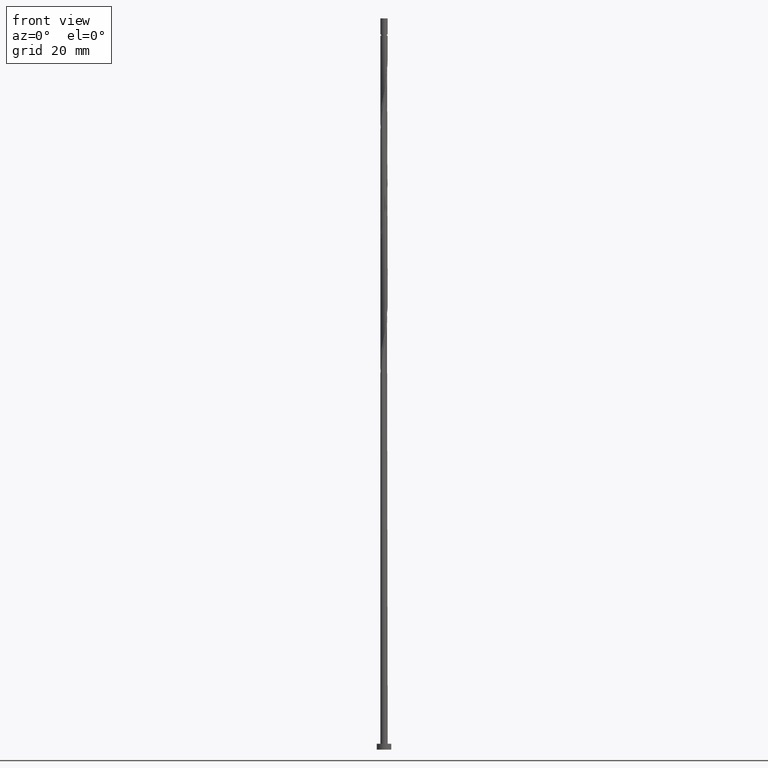
[diagram: clean part render]
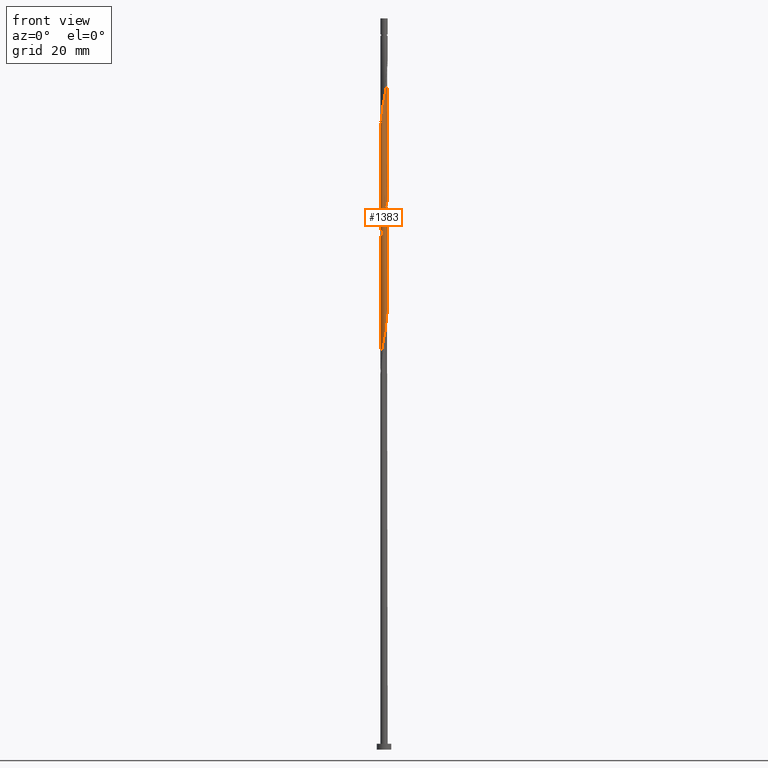
[diagram: same view with one face highlighted and labeled with its STEP entity id]
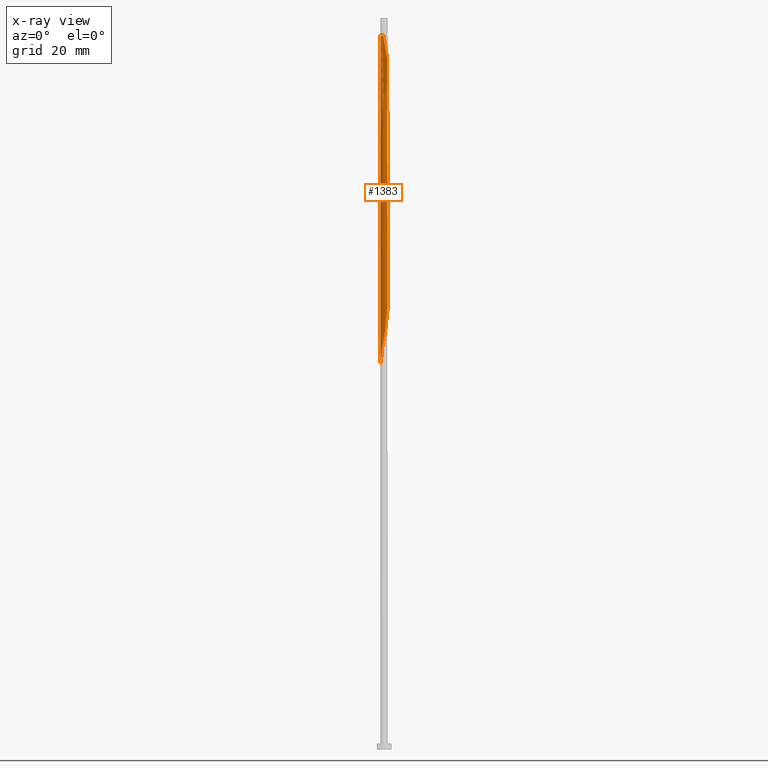
[diagram: x-ray of the same camera — body ghosted, the highlighted face saturated]
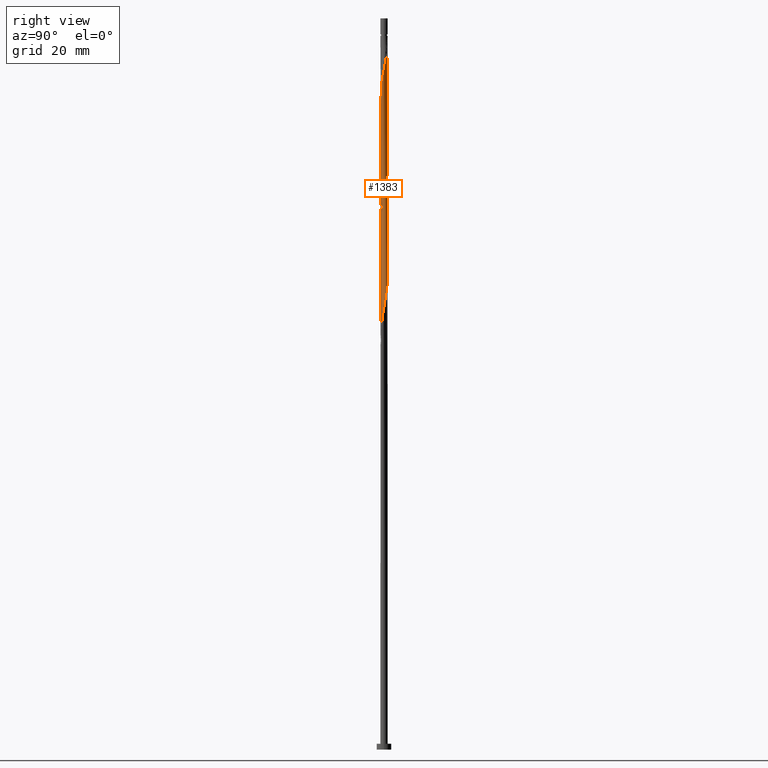
[diagram: same view with one face highlighted and labeled with its STEP entity id]
A machine part, front view. The second image highlights one B-rep face of the part: STEP entity #1383.
The next image is the same camera in x-ray: the body ghosted, the highlighted face saturated — about 0% of this face is hidden behind the body in this view.
A second angle (right view) of the same face is appended — the face is thin or edge-on in the first view.
In plain terms, the highlighted cylindrical surface (bore or boss wall) has radius 1.25 mm, axis along (-0, -0, -1).
Its self-contained STEP definition (entity closure, byte-faithful):
#2 = EDGE_CURVE ( 'NONE', #87, #1367, #236, .T. ) ;
#30 = CARTESIAN_POINT ( 'NONE',  ( -1.186085250128970925, -0.3945906479207278994, 213.6185468352079511 ) ) ;
#41 = CARTESIAN_POINT ( 'NONE',  ( -1.250000000000000222, -2.879018167657564440E-16, 214.1451866598178242 ) ) ;
#48 = ORIENTED_EDGE ( 'NONE', *, *, #283, .F. ) ;
#60 = CARTESIAN_POINT ( 'NONE',  ( -0.3974887887239266782, -1.194796663026319372, 180.7659827326439483 ) ) ;
#69 = CARTESIAN_POINT ( 'NONE',  ( 1.149459557334894466, -0.4911646628692577510, 229.6441878608490299 ) ) ;
#71 = CARTESIAN_POINT ( 'NONE',  ( -0.3490314803447894243, 1.200282060904154902, 163.9390596557208255 ) ) ;
#82 = CARTESIAN_POINT ( 'NONE',  ( -0.4947721086058738393, 1.157901966353689138, 164.7403417070028695 ) ) ;
#87 = VERTEX_POINT ( 'NONE', #1471 ) ;
#90 = CARTESIAN_POINT ( 'NONE',  ( 1.233601749225618605, -0.2018086328864492629, 231.2467519634130895 ) ) ;
#92 = CARTESIAN_POINT ( 'NONE',  ( -0.2487468592766571562, -1.224999999999999645, 139.9005981172593067 ) ) ;
#100 = CARTESIAN_POINT ( 'NONE',  ( -0.2032908520837046762, 1.242662155454620887, 204.8044442711054671 ) ) ;
#102 = CARTESIAN_POINT ( 'NONE',  ( 0.9985149540873564655, 0.7519759879570124816, 155.9262391429003287 ) ) ;
#107 = EDGE_CURVE ( 'NONE', #1596, #740, #1357, .T. ) ;
#111 = CARTESIAN_POINT ( 'NONE',  ( 1.089821369880615620, 0.6307343219546407420, 196.7916237582850272 ) ) ;
#119 = CARTESIAN_POINT ( 'NONE',  ( -1.250000000000000000, 0.000000000000000000, 250.0000000000000000 ) ) ;
#120 = CARTESIAN_POINT ( 'NONE',  ( 0.000000000000000000, 0.000000000000000000, 250.0000000000000000 ) ) ;
#159 = CARTESIAN_POINT ( 'NONE',  ( 1.250000000000000222, -0.04971641292096312670, 193.0476824108515359 ) ) ;
#168 = CARTESIAN_POINT ( 'NONE',  ( -1.233997229160462394, -0.2505738245793976415, 212.8172647839259639 ) ) ;
#181 = CARTESIAN_POINT ( 'NONE',  ( -0.8668509141045653843, -0.9005939666220746931, 216.8236750403361555 ) ) ;
#197 = CARTESIAN_POINT ( 'NONE',  ( 0.6718720440307898167, -1.064952749933035570, 225.6377776044388099 ) ) ;
#199 = CARTESIAN_POINT ( 'NONE',  ( 1.149459557334893578, 0.4911646628692569738, 154.3236750403362691 ) ) ;
#207 = CARTESIAN_POINT ( 'NONE',  ( 0.4947721086058736728, -1.157901966353688916, 143.9070083736695551 ) ) ;
#219 = CARTESIAN_POINT ( 'NONE',  ( -1.233997229160461284, 0.2505738245793975860, 171.1505981172593351 ) ) ;
#222 = CARTESIAN_POINT ( 'NONE',  ( 1.246051491411263479, 0.09927578129518584149, 232.8493160659772343 ) ) ;
#224 = CARTESIAN_POINT ( 'NONE',  ( 0.6261355586025915132, -1.081875345062184746, 144.7082904249516560 ) ) ;
#231 = CARTESIAN_POINT ( 'NONE',  ( -0.9762028196098183619, 0.7953392094734684781, 167.9454699121311023 ) ) ;
#236 = LINE ( 'NONE', #759, #449 ) ;
#241 = LINE ( 'NONE', #1164, #477 ) ;
#242 = CARTESIAN_POINT ( 'NONE',  ( -1.250000000000001332, 7.178850495977267118E-16, 211.4893429080340184 ) ) ;
#243 = CARTESIAN_POINT ( 'NONE',  ( -1.233601749225617272, -0.2018086328864484302, 131.8877776044387815 ) ) ;
#262 = CARTESIAN_POINT ( 'NONE',  ( 1.250000000000000888, 0.1015705481713045505, 193.8515540638327934 ) ) ;
#277 = VERTEX_POINT ( 'NONE', #977 ) ;
#283 = EDGE_CURVE ( 'NONE', #999, #1367, #1059, .T. ) ;
#287 = CARTESIAN_POINT ( 'NONE',  ( -1.250000000000001332, 7.178850495977267118E-16, 211.4893429080340184 ) ) ;
#294 = CARTESIAN_POINT ( 'NONE',  ( 1.233997229160461284, -0.2505738245793976970, 191.9839314505926211 ) ) ;
#316 = CARTESIAN_POINT ( 'NONE',  ( -1.250000000000000222, -2.879018167657564440E-16, 214.1451866598178242 ) ) ;
#318 = CARTESIAN_POINT ( 'NONE',  ( -0.6718720440307901498, -1.064952749933033793, 179.1634186300797751 ) ) ;
#325 = CARTESIAN_POINT ( 'NONE',  ( 1.233997229160462394, 0.2505738245793974750, 233.6505981172593351 ) ) ;
#327 = CARTESIAN_POINT ( 'NONE',  ( 0.9762028196098180288, -0.7953392094734692552, 147.1121365787977311 ) ) ;
#330 = EDGE_CURVE ( 'NONE', #1596, #277, #241, .T. ) ;
#333 = ORIENTED_EDGE ( 'NONE', *, *, #330, .T. ) ;
#334 = CARTESIAN_POINT ( 'NONE',  ( 0.9762028196098204713, 0.7953392094734685891, 236.8557263223875111 ) ) ;
#336 = CARTESIAN_POINT ( 'NONE',  ( 1.209097744789171758, 0.3515950037838719289, 153.5223929890541115 ) ) ;
#346 = CARTESIAN_POINT ( 'NONE',  ( -0.05164296112715841686, 1.248932746214149958, 162.3364955531567375 ) ) ;
#355 = CARTESIAN_POINT ( 'NONE',  ( -1.233601749225617272, -0.2018086328864484302, 173.5544442711054671 ) ) ;
#360 = ORIENTED_EDGE ( 'NONE', *, *, #2, .T. ) ;
#372 = CARTESIAN_POINT ( 'NONE',  ( 0.2487468592766572673, 1.224999999999999645, 202.4005981172593351 ) ) ;
#409 = EDGE_CURVE ( 'NONE', #1632, #999, #1705, .T. ) ;
#421 = VECTOR ( 'NONE', #1018, 1000.000000000000000 ) ;
#427 = CARTESIAN_POINT ( 'NONE',  ( 1.250000000000000444, 3.664204940655083269E-16, 193.3118533264844814 ) ) ;
#432 = ORIENTED_EDGE ( 'NONE', *, *, #107, .F. ) ;
#433 = CARTESIAN_POINT ( 'NONE',  ( -1.057188045353649741, -0.6669733403677636785, 215.2211109377720391 ) ) ;
#442 = DIRECTION ( 'NONE',  ( -0.000000000000000000, -0.000000000000000000, -1.000000000000000000 ) ) ;
#447 = CARTESIAN_POINT ( 'NONE',  ( 1.246051491411262369, -0.09927578129518740968, 192.7852135018746651 ) ) ;
#449 = VECTOR ( 'NONE', #670, 1000.000000000000000 ) ;
#452 = CARTESIAN_POINT ( 'NONE',  ( -0.2032908520837054811, -1.242662155454621997, 220.8300852967464891 ) ) ;
#454 = CARTESIAN_POINT ( 'NONE',  ( 0.2032908520837042876, -1.242662155454620665, 183.9711109377721527 ) ) ;
#462 = CARTESIAN_POINT ( 'NONE',  ( 0.2032908520837055921, 1.242662155454621997, 241.6634186300798319 ) ) ;
#464 = CARTESIAN_POINT ( 'NONE',  ( -0.5346804163773581919, -1.129874706479676361, 179.9647006813618475 ) ) ;
#471 = CARTESIAN_POINT ( 'NONE',  ( 1.089821369880616508, -0.6307343219546429625, 228.8429058095669859 ) ) ;
#473 = CARTESIAN_POINT ( 'NONE',  ( -0.2032908520837046762, 1.242662155454620887, 163.1377776044387531 ) ) ;
#477 = VECTOR ( 'NONE', #1580, 1000.000000000000000 ) ;
#482 = CARTESIAN_POINT ( 'NONE',  ( 0.6718720440307903718, 1.064952749933033793, 158.3300852967464323 ) ) ;
#490 = CARTESIAN_POINT ( 'NONE',  ( -0.1000049298293870792, 1.255203336973681472, 243.2659827326440052 ) ) ;
#492 = CARTESIAN_POINT ( 'NONE',  ( 0.05164296112715802134, -1.248932746214150402, 141.5031622198233947 ) ) ;
#497 = CARTESIAN_POINT ( 'NONE',  ( 1.250000000000000444, 3.664204940655083269E-16, 193.3118533264844814 ) ) ;
#498 = CYLINDRICAL_SURFACE ( 'NONE', #564, 1.250000000000000000 ) ;
#502 = ORIENTED_EDGE ( 'NONE', *, *, #409, .F. ) ;
#523 = CARTESIAN_POINT ( 'NONE',  ( -1.138173271097478123, 0.5386074712620583238, 211.2147006813618475 ) ) ;
#525 = CARTESIAN_POINT ( 'NONE',  ( -1.250000000000000444, -0.1015705481713048419, 131.3515540638328218 ) ) ;
#554 = CARTESIAN_POINT ( 'NONE',  ( 1.057188045353647965, -0.6669733403677639005, 189.5800852967464607 ) ) ;
#564 = AXIS2_PLACEMENT_3D ( 'NONE', #120, #1156, #742 ) ;
#577 = CARTESIAN_POINT ( 'NONE',  ( 0.000000000000000000, 0.000000000000000000, 244.0672647839259639 ) ) ;
#586 = CARTESIAN_POINT ( 'NONE',  ( 0.6261355586025928455, 1.081875345062185190, 239.2595724762335578 ) ) ;
#588 = CARTESIAN_POINT ( 'NONE',  ( -0.6261355586025916242, 1.081875345062184746, 165.5416237582849135 ) ) ;
#598 = CARTESIAN_POINT ( 'NONE',  ( 0.4947721086058736728, -1.157901966353688916, 185.5736750403362407 ) ) ;
#604 = CARTESIAN_POINT ( 'NONE',  ( -0.3490314803447900349, -1.200282060904155790, 220.0288032454643314 ) ) ;
#606 = CARTESIAN_POINT ( 'NONE',  ( -0.1000049298293881339, -1.255203336973680139, 182.3685468352080079 ) ) ;
#611 = CARTESIAN_POINT ( 'NONE',  ( 1.057188045353649519, 0.6669733403677640116, 236.0544442711053534 ) ) ;
#613 = CARTESIAN_POINT ( 'NONE',  ( -0.5346804163773581919, -1.129874706479676361, 138.2980340146951619 ) ) ;
#624 = CARTESIAN_POINT ( 'NONE',  ( 0.6718720440307903718, 1.064952749933033793, 199.9967519634131179 ) ) ;
#626 = CARTESIAN_POINT ( 'NONE',  ( 1.250000000000000444, 3.664204940655083269E-16, 193.3118533264844814 ) ) ;
#627 = CARTESIAN_POINT ( 'NONE',  ( 1.233997229160461284, -0.2505738245793976970, 150.3172647839259923 ) ) ;
#634 = CARTESIAN_POINT ( 'NONE',  ( 1.209097744789171758, 0.3515950037838719289, 195.1890596557208539 ) ) ;
#644 = CARTESIAN_POINT ( 'NONE',  ( -1.089821369880615398, -0.6307343219546411861, 134.2916237582849703 ) ) ;
#670 = DIRECTION ( 'NONE',  ( -0.000000000000000000, -0.000000000000000000, -1.000000000000000000 ) ) ;
#679 = CARTESIAN_POINT ( 'NONE',  ( 1.138173271097478123, -0.5386074712620583238, 190.3813673480285900 ) ) ;
#690 = CARTESIAN_POINT ( 'NONE',  ( -1.246051491411263479, -0.09927578129518627170, 212.0159827326438631 ) ) ;
#697 = CARTESIAN_POINT ( 'NONE',  ( -0.7574990085993109634, -1.005848723770680797, 217.6249570916182563 ) ) ;
#705 = CARTESIAN_POINT ( 'NONE',  ( -0.4947721086058747275, -1.157901966353690248, 219.2275211941823443 ) ) ;
#714 = CARTESIAN_POINT ( 'NONE',  ( 1.057188045353647965, -0.6669733403677639005, 147.9134186300797751 ) ) ;
#724 = CARTESIAN_POINT ( 'NONE',  ( 1.186085250128969593, -0.3945906479207285655, 149.5159827326438915 ) ) ;
#734 = CARTESIAN_POINT ( 'NONE',  ( 1.186085250128970925, 0.3945906479207273998, 234.4518801685412939 ) ) ;
#736 = CARTESIAN_POINT ( 'NONE',  ( -1.138173271097478123, 0.5386074712620583238, 169.5480340146952472 ) ) ;
#740 = VERTEX_POINT ( 'NONE', #1621 ) ;
#741 = CARTESIAN_POINT ( 'NONE',  ( 0.3974887887239261230, -1.194796663026321148, 224.0352135018746651 ) ) ;
#742 = DIRECTION ( 'NONE',  ( -1.000000000000000000, 0.000000000000000000, 0.000000000000000000 ) ) ;
#743 = CARTESIAN_POINT ( 'NONE',  ( 0.7895402911624440634, 0.9690852019462083966, 157.5288032454644167 ) ) ;
#745 = EDGE_CURVE ( 'NONE', #1632, #740, #758, .T. ) ;
#751 = CARTESIAN_POINT ( 'NONE',  ( -0.7574990085993095201, 1.005848723770680131, 208.0095724762336431 ) ) ;
#753 = CARTESIAN_POINT ( 'NONE',  ( 1.138173271097478123, -0.5386074712620583238, 148.7147006813618475 ) ) ;
#758 = CIRCLE ( 'NONE', #974, 1.249999999999982236 ) ;
#759 = CARTESIAN_POINT ( 'NONE',  ( 1.250000000000000000, 1.530808498934191571E-16, 250.0000000000000000 ) ) ;
#770 = CARTESIAN_POINT ( 'NONE',  ( -0.9762028196098183619, 0.7953392094734684781, 209.6121365787977595 ) ) ;
#771 = CARTESIAN_POINT ( 'NONE',  ( -1.249999999999982236, 0.000000000000000000, 244.0672647839259639 ) ) ;
#784 = CARTESIAN_POINT ( 'NONE',  ( -0.6261355586025916242, 1.081875345062184746, 207.2082904249515991 ) ) ;
#809 = CARTESIAN_POINT ( 'NONE',  ( 1.186085250128969593, -0.3945906479207285655, 191.1826493993105771 ) ) ;
#818 = CARTESIAN_POINT ( 'NONE',  ( -1.250000000000001332, -0.04971641292096209280, 211.7535138236669638 ) ) ;
#846 = CARTESIAN_POINT ( 'NONE',  ( -1.250000000000000000, 0.04971641292095846376, 213.8810157441848503 ) ) ;
#848 = CARTESIAN_POINT ( 'NONE',  ( -0.9985149540873564655, -0.7519759879570125927, 176.7595724762336147 ) ) ;
#855 = CARTESIAN_POINT ( 'NONE',  ( 0.2487468592766569064, -1.225000000000000755, 223.2339314505925643 ) ) ;
#857 = CARTESIAN_POINT ( 'NONE',  ( 0.8668509141045642741, -0.9005939666220742490, 146.3108545275157155 ) ) ;
#865 = CARTESIAN_POINT ( 'NONE',  ( 0.3490314803447906455, 1.200282060904155568, 240.8621365787976742 ) ) ;
#867 = CARTESIAN_POINT ( 'NONE',  ( 1.258105753662063453, 0.05202226198902392545, 151.9198288864900519 ) ) ;
#878 = CARTESIAN_POINT ( 'NONE',  ( 0.3490314803447892578, -1.200282060904154902, 143.1057263223875395 ) ) ;
#885 = CARTESIAN_POINT ( 'NONE',  ( -1.246051491411262369, 0.09927578129518672967, 171.9518801685413507 ) ) ;
#902 = CARTESIAN_POINT ( 'NONE',  ( 0.3974887887239267892, 1.194796663026319372, 201.5993160659772627 ) ) ;
#910 = CARTESIAN_POINT ( 'NONE',  ( 0.5346804163773589691, 1.129874706479676361, 200.7980340146951903 ) ) ;
#912 = CARTESIAN_POINT ( 'NONE',  ( -0.9072085382940969778, -0.8732176539593839992, 135.8941878608490583 ) ) ;
#958 = ORIENTED_EDGE ( 'NONE', *, *, #1021, .F. ) ;
#959 = CARTESIAN_POINT ( 'NONE',  ( -0.9762028196098199162, -0.7953392094734692552, 216.0223929890542252 ) ) ;
#974 = AXIS2_PLACEMENT_3D ( 'NONE', #577, #442, #1486 ) ;
#977 = CARTESIAN_POINT ( 'NONE',  ( -1.250000000000000444, -8.637054502972695292E-16, 130.8118533264844814 ) ) ;
#979 = CARTESIAN_POINT ( 'NONE',  ( 0.3490314803447892578, -1.200282060904154902, 184.7723929890541683 ) ) ;
#986 = CARTESIAN_POINT ( 'NONE',  ( -1.089821369880615398, -0.6307343219546411861, 175.9582904249516275 ) ) ;
#994 = CARTESIAN_POINT ( 'NONE',  ( 0.8668509141045653843, 0.9005939666220745821, 237.6570083736694983 ) ) ;
#995 = CARTESIAN_POINT ( 'NONE',  ( 0.6261355586025915132, -1.081875345062184746, 186.3749570916183131 ) ) ;
#999 = VERTEX_POINT ( 'NONE', #41 ) ;
#1000 = CARTESIAN_POINT ( 'NONE',  ( 0.05164296112715983239, 1.248932746214151290, 242.4647006813618191 ) ) ;
#1002 = CARTESIAN_POINT ( 'NONE',  ( 0.7574990085993092981, -1.005848723770680353, 187.1762391429003287 ) ) ;
#1009 = CARTESIAN_POINT ( 'NONE',  ( -0.2487468592766896580, 1.225000000000328715, 244.0672647839259639 ) ) ;
#1011 = CARTESIAN_POINT ( 'NONE',  ( -0.6718720440307901498, -1.064952749933033793, 137.4967519634131179 ) ) ;
#1018 = DIRECTION ( 'NONE',  ( -0.000000000000000000, -0.000000000000000000, -1.000000000000000000 ) ) ;
#1021 = EDGE_CURVE ( 'NONE', #1367, #277, #1411, .T. ) ;
#1026 = CARTESIAN_POINT ( 'NONE',  ( -0.3490314803447894243, 1.200282060904154902, 205.6057263223875111 ) ) ;
#1028 = CARTESIAN_POINT ( 'NONE',  ( -1.149459557334893578, -0.4911646628692570848, 133.4903417070028979 ) ) ;
#1033 = CARTESIAN_POINT ( 'NONE',  ( 0.9985149540873564655, 0.7519759879570124816, 197.5929058095670143 ) ) ;
#1043 = CARTESIAN_POINT ( 'NONE',  ( -1.186085250128969593, 0.3945906479207281214, 212.0159827326439199 ) ) ;
#1051 = CARTESIAN_POINT ( 'NONE',  ( -1.233997229160461284, 0.2505738245793975860, 212.8172647839259639 ) ) ;
#1059 =( BOUNDED_CURVE ( )  B_SPLINE_CURVE ( 2, ( #316, #846, #1155, #1051, #1043, #523, #1182, #770, #1678, #751, #784, #1431, #1026, #100, #1562, #1686, #372, #902, #910, #624, #1299, #1317, #1033, #111, #1424, #634, #1544, #262, #497 ),
 .UNSPECIFIED., .F., .T. ) 
 B_SPLINE_CURVE_WITH_KNOTS ( ( 3, 2, 2, 2, 2, 2, 2, 2, 2, 2, 2, 2, 2, 2, 3 ),
 ( 0.4295271625973830498, 0.4326923076923077094, 0.4423076923076922906, 0.4519230769230769273, 0.4615384615384615641, 0.4711538461538461453, 0.4807692307692307820, 0.4903846153846153633, 0.5000000000000000000, 0.5096153846153845812, 0.5192307692307692735, 0.5288461538461538547, 0.5384615384615384359, 0.5480769230769231282, 0.5545271625973833274 ),
 .UNSPECIFIED. ) 
 CURVE ( )  GEOMETRIC_REPRESENTATION_ITEM ( )  RATIONAL_B_SPLINE_CURVE ( ( 0.9061636035683214851, 0.9069090390691100234, 0.9090909090909667922, 0.9024626128164701111, 0.9090909090909667922, 0.9024626128164701111, 0.9090909090909667922, 0.9024626128164701111, 0.9090909090909667922, 0.9024626128164701111, 0.9090909090909667922, 0.9024626128164701111, 0.9090909090909667922, 0.9024626128164701111, 0.9090909090909667922, 0.9024626128164701111, 0.9090909090909667922, 0.9024626128164701111, 0.9090909090909667922, 0.9024626128164701111, 0.9090909090909667922, 0.9024626128164701111, 0.9090909090909667922, 0.9024626128164701111, 0.9090909090909667922, 0.9024626128164701111, 0.9090909090909667922, 0.9046444828383266579, 0.9061636035683214851 ) ) 
 REPRESENTATION_ITEM ( '' )  );
#1119 = CARTESIAN_POINT ( 'NONE',  ( 0.7574990085993114075, 1.005848723770680131, 238.4582904249516275 ) ) ;
#1121 = CARTESIAN_POINT ( 'NONE',  ( 0.1000049298293878564, 1.255203336973680139, 161.5352135018746651 ) ) ;
#1127 = CARTESIAN_POINT ( 'NONE',  ( 1.138173271097479677, 0.5386074712620585458, 235.2531622198233947 ) ) ;
#1129 = CARTESIAN_POINT ( 'NONE',  ( 1.089821369880615620, 0.6307343219546407420, 155.1249570916182563 ) ) ;
#1139 = CARTESIAN_POINT ( 'NONE',  ( 0.2487468592766572673, 1.224999999999999645, 160.7339314505926211 ) ) ;
#1146 = CARTESIAN_POINT ( 'NONE',  ( -0.6261355586025928455, -1.081875345062185190, 218.4262391429003003 ) ) ;
#1148 = CARTESIAN_POINT ( 'NONE',  ( -0.9072085382940969778, -0.8732176539593839992, 177.5608545275156871 ) ) ;
#1155 = CARTESIAN_POINT ( 'NONE',  ( -1.246051491411262369, 0.09927578129518672967, 213.6185468352080647 ) ) ;
#1156 = DIRECTION ( 'NONE',  ( -0.000000000000000000, -0.000000000000000000, -1.000000000000000000 ) ) ;
#1157 = CARTESIAN_POINT ( 'NONE',  ( -0.7895402911624437303, -0.9690852019462086187, 136.6954699121311023 ) ) ;
#1164 = CARTESIAN_POINT ( 'NONE',  ( -1.250000000000000000, 0.000000000000000000, 250.0000000000000000 ) ) ;
#1182 = CARTESIAN_POINT ( 'NONE',  ( -1.057188045353647965, 0.6669733403677637895, 210.4134186300797751 ) ) ;
#1248 = CARTESIAN_POINT ( 'NONE',  ( -0.7895402911624437303, -0.9690852019462086187, 178.3621365787977879 ) ) ;
#1258 = CARTESIAN_POINT ( 'NONE',  ( 0.9985149540873566876, -0.7519759879570139249, 228.0416237582848566 ) ) ;
#1260 = CARTESIAN_POINT ( 'NONE',  ( 0.2032908520837042876, -1.242662155454620665, 142.3044442711054671 ) ) ;
#1269 = CARTESIAN_POINT ( 'NONE',  ( -1.258105753662063453, -0.05202226198902440424, 172.7531622198233663 ) ) ;
#1271 = ORIENTED_EDGE ( 'NONE', *, *, #2, .F. ) ;
#1275 = CARTESIAN_POINT ( 'NONE',  ( 0.5346804163773579699, -1.129874706479677915, 224.8364955531566522 ) ) ;
#1277 = CARTESIAN_POINT ( 'NONE',  ( -0.1000049298293881339, -1.255203336973680139, 140.7018801685413223 ) ) ;
#1285 = CARTESIAN_POINT ( 'NONE',  ( -0.3974887887239266782, -1.194796663026319372, 139.0993160659772343 ) ) ;
#1299 = CARTESIAN_POINT ( 'NONE',  ( 0.7895402911624440634, 0.9690852019462083966, 199.1954699121310455 ) ) ;
#1317 = CARTESIAN_POINT ( 'NONE',  ( 0.9072085382940971998, 0.8732176539593839992, 198.3941878608490867 ) ) ;
#1357 =( BOUNDED_CURVE ( )  B_SPLINE_CURVE ( 2, ( #287, #818, #690, #168, #30, #1616, #433, #959, #181, #697, #1146, #705, #604, #452, #1651, #1504, #855, #741, #1275, #197, #1643, #1389, #1258, #471, #69, #1671, #90, #1406, #222, #325, #734, #1127, #611, #334, #994, #1119, #586, #1378, #865, #462, #1000, #490, #1009 ),
 .UNSPECIFIED., .F., .T. ) 
 B_SPLINE_CURVE_WITH_KNOTS ( ( 3, 2, 2, 2, 2, 2, 2, 2, 2, 2, 2, 2, 2, 2, 2, 2, 2, 2, 2, 2, 2, 3 ),
 ( 0.5545271625973833274, 0.5576923076923077094, 0.5673076923076922906, 0.5769230769230768718, 0.5865384615384615641, 0.5961538461538461453, 0.6057692307692308376, 0.6153846153846154188, 0.6250000000000000000, 0.6346153846153845812, 0.6442307692307691624, 0.6538461538461538547, 0.6634615384615384359, 0.6730769230769231282, 0.6826923076923077094, 0.6923076923076922906, 0.7019230769230768718, 0.7115384615384615641, 0.7211538461538461453, 0.7307692307692308376, 0.7403846153846154188, 0.7500000000000000000 ),
 .UNSPECIFIED. ) 
 CURVE ( )  GEOMETRIC_REPRESENTATION_ITEM ( )  RATIONAL_B_SPLINE_CURVE ( ( 0.9061636035683260371, 0.9069090390691147974, 0.9090909090909714552, 0.9024626128164744410, 0.9090909090909714552, 0.9024626128164744410, 0.9090909090909714552, 0.9024626128164744410, 0.9090909090909714552, 0.9024626128164744410, 0.9090909090909714552, 0.9024626128164744410, 0.9090909090909714552, 0.9024626128164744410, 0.9090909090909714552, 0.9024626128164744410, 0.9090909090909714552, 0.9024626128164744410, 0.9090909090909714552, 0.9024626128164744410, 0.9090909090909714552, 0.9024626128164744410, 0.9090909090909714552, 0.9024626128164744410, 0.9090909090909714552, 0.9024626128164744410, 0.9090909090909714552, 0.9024626128164744410, 0.9090909090909714552, 0.9024626128164744410, 0.9090909090909714552, 0.9024626128164744410, 0.9090909090909714552, 0.9024626128164744410, 0.9090909090909714552, 0.9024626128164744410, 0.9090909090909714552, 0.9024626128164744410, 0.9090909090909714552, 0.9024626128164744410, 0.9090909090909714552, 0.9024626128164744410, 0.9090909090909714552 ) ) 
 REPRESENTATION_ITEM ( '' )  );
#1367 = VERTEX_POINT ( 'NONE', #626 ) ;
#1378 = CARTESIAN_POINT ( 'NONE',  ( 0.4947721086058747275, 1.157901966353690248, 240.0608545275156587 ) ) ;
#1380 = CARTESIAN_POINT ( 'NONE',  ( -0.8668509141045642741, 0.9005939666220742490, 167.1441878608490015 ) ) ;
#1383 = ADVANCED_FACE ( 'NONE', ( #1402 ), #498, .T. ) ;
#1389 = CARTESIAN_POINT ( 'NONE',  ( 0.9072085382940975329, -0.8732176539593852205, 227.2403417070029548 ) ) ;
#1391 = CARTESIAN_POINT ( 'NONE',  ( 0.7574990085993092981, -1.005848723770680353, 145.5095724762336147 ) ) ;
#1402 = FACE_OUTER_BOUND ( 'NONE', #1421, .T. ) ;
#1403 = CARTESIAN_POINT ( 'NONE',  ( 0.05164296112715802134, -1.248932746214150402, 183.1698288864900235 ) ) ;
#1406 = CARTESIAN_POINT ( 'NONE',  ( 1.258105753662064119, -0.05202226198902464710, 232.0480340146952187 ) ) ;
#1408 = CARTESIAN_POINT ( 'NONE',  ( -0.7574990085993095201, 1.005848723770680131, 166.3429058095669575 ) ) ;
#1411 =( BOUNDED_CURVE ( )  B_SPLINE_CURVE ( 2, ( #427, #159, #447, #294, #809, #679, #554, #1601, #1473, #1002, #995, #598, #979, #454, #1403, #606, #1497, #60, #464, #318, #1248, #1148, #848, #986, #1537, #1519, #355, #1269, #885, #219, #1506, #736, #1653, #231, #1380, #1408, #588, #82, #71, #473, #346, #1121, #1139, #1664, #1673, #482, #743, #1416, #102, #1129, #199, #336, #1529, #867, #1645, #627, #724, #753, #714, #327, #857, #1391, #224, #207, #878, #1260, #492, #1277, #92, #1285, #613, #1011, #1157, #912, #1565, #644, #1028, #1688, #243, #525, #1554 ),
 .UNSPECIFIED., .F., .T. ) 
 B_SPLINE_CURVE_WITH_KNOTS ( ( 3, 2, 2, 2, 2, 2, 2, 2, 2, 2, 2, 2, 2, 2, 2, 2, 2, 2, 2, 2, 2, 2, 2, 2, 2, 2, 2, 2, 2, 2, 2, 2, 2, 2, 2, 2, 2, 2, 2, 2, 3 ),
 ( 0.5545271625973833274, 0.5576923076923077094, 0.5673076923076922906, 0.5769230769230768718, 0.5865384615384615641, 0.5961538461538461453, 0.6057692307692307265, 0.6153846153846154188, 0.6250000000000000000, 0.6346153846153845812, 0.6442307692307692735, 0.6538461538461538547, 0.6634615384615384359, 0.6730769230769231282, 0.6826923076923077094, 0.6923076923076922906, 0.7019230769230768718, 0.7115384615384615641, 0.7211538461538461453, 0.7307692307692307265, 0.7403846153846154188, 0.7500000000000000000, 0.7596153846153845812, 0.7692307692307692735, 0.7788461538461538547, 0.7884615384615384359, 0.7980769230769231282, 0.8076923076923077094, 0.8173076923076922906, 0.8269230769230768718, 0.8365384615384615641, 0.8461538461538461453, 0.8557692307692307265, 0.8653846153846154188, 0.8750000000000000000, 0.8846153846153845812, 0.8942307692307693845, 0.9038461538461539657, 0.9134615384615385469, 0.9230769230769231282, 0.9295271625973833274 ),
 .UNSPECIFIED. ) 
 CURVE ( )  GEOMETRIC_REPRESENTATION_ITEM ( )  RATIONAL_B_SPLINE_CURVE ( ( 0.9061636035683214851, 0.9069090390691101344, 0.9090909090909667922, 0.9024626128164701111, 0.9090909090909667922, 0.9024626128164701111, 0.9090909090909667922, 0.9024626128164701111, 0.9090909090909667922, 0.9024626128164701111, 0.9090909090909667922, 0.9024626128164701111, 0.9090909090909667922, 0.9024626128164701111, 0.9090909090909667922, 0.9024626128164701111, 0.9090909090909667922, 0.9024626128164701111, 0.9090909090909667922, 0.9024626128164701111, 0.9090909090909667922, 0.9024626128164701111, 0.9090909090909667922, 0.9024626128164701111, 0.9090909090909667922, 0.9024626128164701111, 0.9090909090909667922, 0.9024626128164701111, 0.9090909090909667922, 0.9024626128164701111, 0.9090909090909667922, 0.9024626128164701111, 0.9090909090909667922, 0.9024626128164701111, 0.9090909090909667922, 0.9024626128164701111, 0.9090909090909667922, 0.9024626128164701111, 0.9090909090909667922, 0.9024626128164701111, 0.9090909090909667922, 0.9024626128164701111, 0.9090909090909667922, 0.9024626128164701111, 0.9090909090909667922, 0.9024626128164701111, 0.9090909090909667922, 0.9024626128164701111, 0.9090909090909667922, 0.9024626128164701111, 0.9090909090909667922, 0.9024626128164701111, 0.9090909090909667922, 0.9024626128164701111, 0.9090909090909667922, 0.9024626128164701111, 0.9090909090909667922, 0.9024626128164701111, 0.9090909090909667922, 0.9024626128164701111, 0.9090909090909667922, 0.9024626128164701111, 0.9090909090909667922, 0.9024626128164701111, 0.9090909090909667922, 0.9024626128164701111, 0.9090909090909667922, 0.9024626128164701111, 0.9090909090909667922, 0.9024626128164701111, 0.9090909090909667922, 0.9024626128164701111, 0.9090909090909667922, 0.9024626128164701111, 0.9090909090909667922, 0.9024626128164701111, 0.9090909090909667922, 0.9024626128164701111, 0.9090909090909667922, 0.9046444828383266579, 0.9061636035683214851 ) ) 
 REPRESENTATION_ITEM ( '' )  );
#1416 = CARTESIAN_POINT ( 'NONE',  ( 0.9072085382940971998, 0.8732176539593839992, 156.7275211941823727 ) ) ;
#1421 = EDGE_LOOP ( 'NONE', ( #502, #1516, #432, #333, #958, #1271, #360, #48 ) ) ;
#1424 = CARTESIAN_POINT ( 'NONE',  ( 1.149459557334893578, 0.4911646628692569738, 195.9903417070029263 ) ) ;
#1431 = CARTESIAN_POINT ( 'NONE',  ( -0.4947721086058738393, 1.157901966353689138, 206.4070083736695551 ) ) ;
#1471 = CARTESIAN_POINT ( 'NONE',  ( 1.250000000000000000, 1.530808498934191571E-16, 244.0672647839259639 ) ) ;
#1473 = CARTESIAN_POINT ( 'NONE',  ( 0.8668509141045642741, -0.9005939666220742490, 187.9775211941823727 ) ) ;
#1486 = DIRECTION ( 'NONE',  ( -1.000000000000000000, 0.000000000000000000, 0.000000000000000000 ) ) ;
#1497 = CARTESIAN_POINT ( 'NONE',  ( -0.2487468592766571562, -1.224999999999999645, 181.5672647839259923 ) ) ;
#1504 = CARTESIAN_POINT ( 'NONE',  ( 0.1000049298293872874, -1.255203336973681472, 222.4326493993105487 ) ) ;
#1506 = CARTESIAN_POINT ( 'NONE',  ( -1.186085250128969593, 0.3945906479207281214, 170.3493160659772911 ) ) ;
#1516 = ORIENTED_EDGE ( 'NONE', *, *, #745, .T. ) ;
#1519 = CARTESIAN_POINT ( 'NONE',  ( -1.209097744789171758, -0.3515950037838728170, 174.3557263223875111 ) ) ;
#1529 = CARTESIAN_POINT ( 'NONE',  ( 1.233601749225617494, 0.2018086328864485690, 152.7211109377721812 ) ) ;
#1537 = CARTESIAN_POINT ( 'NONE',  ( -1.149459557334893578, -0.4911646628692570848, 175.1570083736695267 ) ) ;
#1544 = CARTESIAN_POINT ( 'NONE',  ( 1.233601749225617494, 0.2018086328864485690, 194.3877776044387531 ) ) ;
#1554 = CARTESIAN_POINT ( 'NONE',  ( -1.250000000000000444, -8.637054502972695292E-16, 130.8118533264844814 ) ) ;
#1562 = CARTESIAN_POINT ( 'NONE',  ( -0.05164296112715841686, 1.248932746214149958, 204.0031622198234231 ) ) ;
#1565 = CARTESIAN_POINT ( 'NONE',  ( -0.9985149540873564655, -0.7519759879570125927, 135.0929058095670143 ) ) ;
#1580 = DIRECTION ( 'NONE',  ( -0.000000000000000000, -0.000000000000000000, -1.000000000000000000 ) ) ;
#1596 = VERTEX_POINT ( 'NONE', #242 ) ;
#1601 = CARTESIAN_POINT ( 'NONE',  ( 0.9762028196098180288, -0.7953392094734692552, 188.7788032454644167 ) ) ;
#1616 = CARTESIAN_POINT ( 'NONE',  ( -1.138173271097479233, -0.5386074712620589899, 214.4198288864901087 ) ) ;
#1621 = CARTESIAN_POINT ( 'NONE',  ( -0.2487468592766896580, 1.225000000000328715, 244.0672647839259355 ) ) ;
#1632 = VERTEX_POINT ( 'NONE', #771 ) ;
#1643 = CARTESIAN_POINT ( 'NONE',  ( 0.7895402911624437303, -0.9690852019462100619, 226.4390596557208255 ) ) ;
#1645 = CARTESIAN_POINT ( 'NONE',  ( 1.246051491411262369, -0.09927578129518740968, 151.1185468352080079 ) ) ;
#1651 = CARTESIAN_POINT ( 'NONE',  ( -0.05164296112715909687, -1.248932746214151290, 221.6313673480285047 ) ) ;
#1653 = CARTESIAN_POINT ( 'NONE',  ( -1.057188045353647965, 0.6669733403677637895, 168.7467519634131747 ) ) ;
#1664 = CARTESIAN_POINT ( 'NONE',  ( 0.3974887887239267892, 1.194796663026319372, 159.9326493993106055 ) ) ;
#1671 = CARTESIAN_POINT ( 'NONE',  ( 1.209097744789172868, -0.3515950037838740383, 230.4454699121310455 ) ) ;
#1673 = CARTESIAN_POINT ( 'NONE',  ( 0.5346804163773589691, 1.129874706479676361, 159.1313673480285331 ) ) ;
#1678 = CARTESIAN_POINT ( 'NONE',  ( -0.8668509141045642741, 0.9005939666220742490, 208.8108545275156871 ) ) ;
#1686 = CARTESIAN_POINT ( 'NONE',  ( 0.1000049298293878564, 1.255203336973680139, 203.2018801685413507 ) ) ;
#1688 = CARTESIAN_POINT ( 'NONE',  ( -1.209097744789171758, -0.3515950037838728170, 132.6890596557208255 ) ) ;
#1705 = LINE ( 'NONE', #119, #421 ) ;